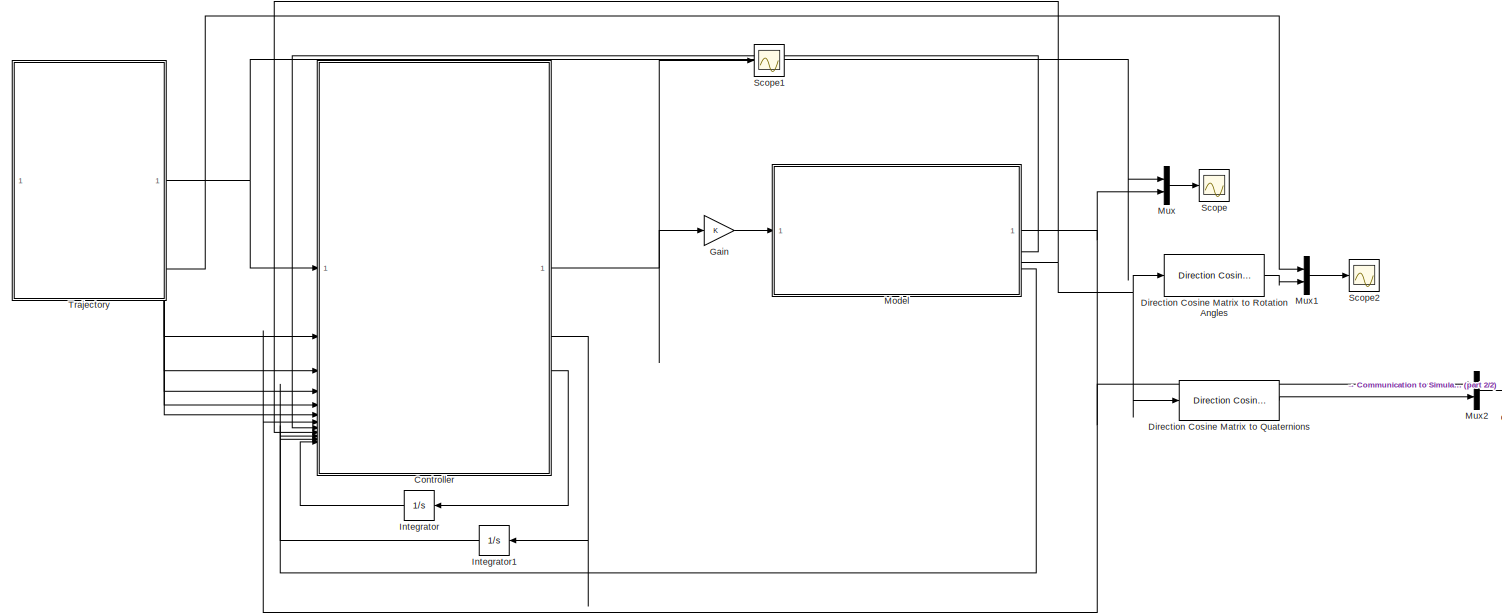
[diagram: root canvas - part 1/2, most of the canvas]
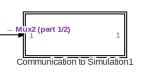
[diagram: root canvas - part 2/2, middle right region]
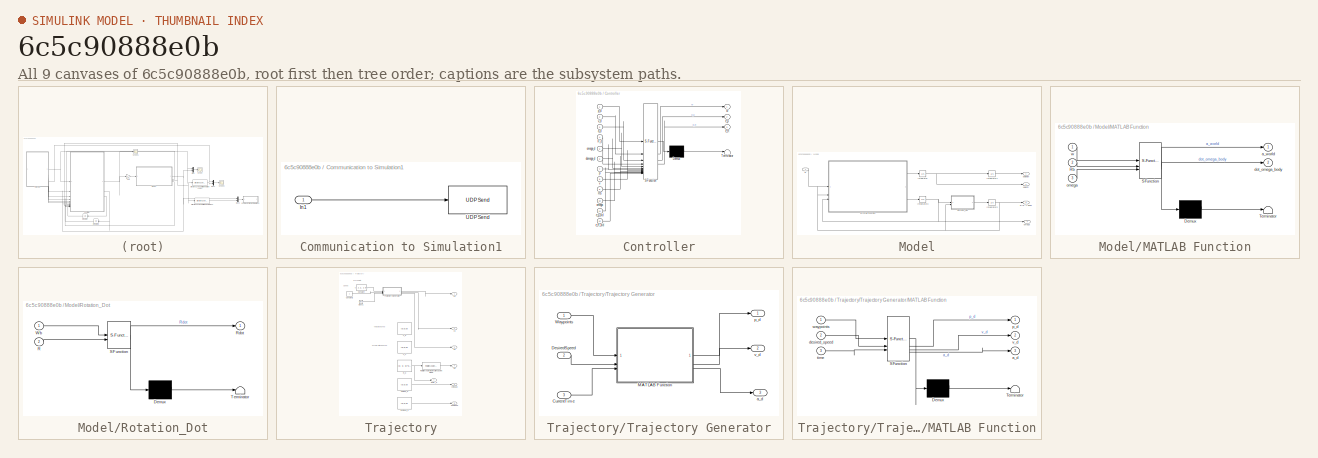
[diagram: thumbnail index - all 9 canvases of the model, root first then tree order]
MODEL slx_6c5c90888e0b
KIND model
CONFIG AbsTol = auto
CONFIG EnableMultiTasking = off
CONFIG FixedStep = basic_step_time
CONFIG MaxStep = auto
CONFIG MinStep = auto
CONFIG RelTol = 1e-3
CONFIG SampleTimeConstraint = Unconstrained
CONFIG SolverName = ode3
CONFIG StartTime = 0.0
CONFIG StopTime = 100000
BLOCK [SubSystem] Communication to Simulation1
  SystemSampleTime = 0.01
  TreatAsAtomicUnit = on
BLOCK [Inport] Communication to Simulation1/In1
BLOCK [Reference] Communication to Simulation1/UDP Send  REF=dspnetwork/UDP Send
  SourceBlock = dspnetwork/UDP Send
  SourceType = UDP Send
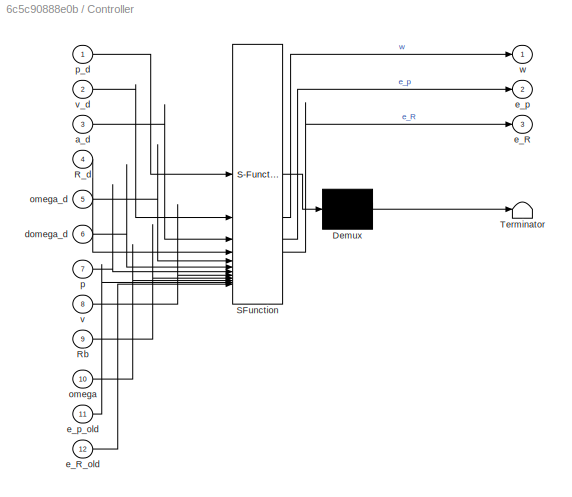
BLOCK [SubSystem] Controller
  ErrorFcn = Stateflow.Translate.translate
  PermitHierarchicalResolution = ExplicitOnly
  SFBlockType = MATLAB Function
  TreatAsAtomicUnit = on
BLOCK [Demux] Controller/ Demux 
  Outputs = 1
BLOCK [S-Function] Controller/ SFunction 
  EnableBusSupport = on
  FunctionName = sf_sfun
  Parameters = F,J,g,k_R,k_i_R,k_i_p,k_omega,k_p,k_v,m
  PortCounts = [12 4]
  SFcnIsStateOwnerBlock = off
  SFunctionDeploymentMode = off
  Tag = Stateflow S-Function 1
BLOCK [Terminator] Controller/ Terminator 
BLOCK [Inport] Controller/R_d
  Port = 4
BLOCK [Inport] Controller/Rb
  Port = 9
BLOCK [Inport] Controller/a_d
  Port = 3
BLOCK [Inport] Controller/domega_d
  Port = 6
BLOCK [Outport] Controller/e_R
  Port = 3
BLOCK [Inport] Controller/e_R_old
  Port = 12
BLOCK [Outport] Controller/e_p
  Port = 2
BLOCK [Inport] Controller/e_p_old
  Port = 11
BLOCK [Inport] Controller/omega
  Port = 10
BLOCK [Inport] Controller/omega_d
  Port = 5
BLOCK [Inport] Controller/p
  Port = 7
BLOCK [Inport] Controller/p_d
BLOCK [Inport] Controller/v
  Port = 8
BLOCK [Inport] Controller/v_d
  Port = 2
BLOCK [Outport] Controller/w
BLOCK [Reference] Direction Cosine Matrix to Quaternions  REF=sharedtransform/Direction Cosine Matrix 
to Quaternions
  SourceBlock = sharedtransform/Direction Cosine Matrix \nto Quaternions
  SourceType = DCM2Quaternion
BLOCK [Reference] Direction Cosine Matrix to Rotation Angles  REF=sharedtransform/Direction Cosine Matrix
to Rotation Angles
  AttributesFormatString = Rotation Order: %<rotationOrder>
  SourceBlock = sharedtransform/Direction Cosine Matrix\nto Rotation Angles
  SourceType = DCM2Ang
BLOCK [Gain] Gain
BLOCK [Integrator] Integrator
BLOCK [Integrator] Integrator1
BLOCK [SubSystem] Model
BLOCK [Integrator] Model/Integrator
  InitialCondition = v_init
BLOCK [Integrator] Model/Integrator1
  InitialCondition = p_init
BLOCK [Integrator] Model/Integrator2
  InitialCondition = R_init
BLOCK [Integrator] Model/Integrator3
  InitialCondition = omega_init
BLOCK [SubSystem] Model/MATLAB Function
  ErrorFcn = Stateflow.Translate.translate
  PermitHierarchicalResolution = ExplicitOnly
  SFBlockType = MATLAB Function
  TreatAsAtomicUnit = on
BLOCK [Demux] Model/MATLAB Function/ Demux 
  Outputs = 1
BLOCK [S-Function] Model/MATLAB Function/ SFunction 
  EnableBusSupport = on
  FunctionName = sf_sfun
  Parameters = F,J,g,m
  PortCounts = [3 3]
  SFcnIsStateOwnerBlock = off
  SFunctionDeploymentMode = off
  Tag = Stateflow S-Function 2
BLOCK [Terminator] Model/MATLAB Function/ Terminator 
BLOCK [Inport] Model/MATLAB Function/Rb
  Port = 2
BLOCK [Outport] Model/MATLAB Function/a_world
BLOCK [Outport] Model/MATLAB Function/dot_omega_body
  Port = 2
BLOCK [Inport] Model/MATLAB Function/omega
  Port = 3
BLOCK [Inport] Model/MATLAB Function/w
BLOCK [Outport] Model/R (b -> ENU)
  Port = 3
BLOCK [SubSystem] Model/Rotation_Dot
  ErrorFcn = Stateflow.Translate.translate
  PermitHierarchicalResolution = ExplicitOnly
  SFBlockType = MATLAB Function
  TreatAsAtomicUnit = on
BLOCK [Demux] Model/Rotation_Dot/ Demux 
  Outputs = 1
BLOCK [S-Function] Model/Rotation_Dot/ SFunction 
  EnableBusSupport = on
  FunctionName = sf_sfun
  PortCounts = [2 2]
  SFcnIsStateOwnerBlock = off
  SFunctionDeploymentMode = off
  Tag = Stateflow S-Function 5
BLOCK [Terminator] Model/Rotation_Dot/ Terminator 
BLOCK [Inport] Model/Rotation_Dot/R
  Port = 2
BLOCK [Outport] Model/Rotation_Dot/Rdot
BLOCK [Inport] Model/Rotation_Dot/Wb
BLOCK [Outport] Model/omega
  Port = 4
BLOCK [Outport] Model/poisition
BLOCK [Outport] Model/velocity
  Port = 2
BLOCK [Inport] Model/w
BLOCK [Mux] Mux
  Commented = on
  DisplayOption = bar
  Inputs = 2
BLOCK [Mux] Mux1
  DisplayOption = bar
  Inputs = 2
BLOCK [Mux] Mux2
  DisplayOption = bar
  Inputs = 2
BLOCK [Scope] Scope
  Commented = on
  Floating = off
  NumInputPorts = 1
  ScopeSpecificationString = Simulink.scopes.TimeScopeBlockCfg('CurrentConfiguration', extmgr.ConfigurationSet(extmgr.Configuration('Core','General UI',true),extmgr.Configuration('Core','Source UI',true),extmgr.Configuration('Sources','WiredSimulink',true),extmgr.Configuration('Visuals','Time Domain',true,'SerializedDisplays',{struct('MinYLimReal','-0.12509','MaxYLimReal','1.12501','YLabelReal','','MinYLimMag','0.00000','MaxY...<+1652ch>
BLOCK [Scope] Scope1
  Floating = off
  NumInputPorts = 1
  ScopeSpecificationString = Simulink.scopes.TimeScopeBlockCfg('CurrentConfiguration', extmgr.ConfigurationSet(extmgr.Configuration('Core','General UI',true),extmgr.Configuration('Core','Source UI',true),extmgr.Configuration('Sources','WiredSimulink',true,'DataLoggingVariableName','ScopeData1'),extmgr.Configuration('Visuals','Time Domain',true,'SerializedDisplays',{struct('MinYLimReal','-505.31949','MaxYLimReal','596.95133','...<+1759ch>
BLOCK [Scope] Scope2
  Floating = off
  NumInputPorts = 1
  ScopeSpecificationString = Simulink.scopes.TimeScopeBlockCfg('CurrentConfiguration', extmgr.ConfigurationSet(extmgr.Configuration('Core','General UI',true),extmgr.Configuration('Core','Source UI',true),extmgr.Configuration('Sources','WiredSimulink',true,'DataLoggingVariableName','ScopeData2'),extmgr.Configuration('Visuals','Time Domain',true,'SerializedDisplays',{struct('MinYLimReal','-0.00000000000022','MaxYLimReal','0.000...<+1769ch>
BLOCK [SubSystem] Trajectory
BLOCK [Clock] Trajectory/Clock1
BLOCK [Constant] Trajectory/Constant
  Value = [1 1 1; 1 0 -0.3; 1 0.5 -0.4; 1 0 -0.4; 1 0 1; 4 0 1; 4 0 -0.4; 4 1 -0.4; 1 1 1]
  VectorParams1D = off
BLOCK [Constant] Trajectory/Constant1
BLOCK [Outport] Trajectory/Euler_d
  Port = 7
BLOCK [Constant] Trajectory/R_d
  Value = [0; 0; 0]*pi/180
BLOCK [Outport] Trajectory/Rd
  Port = 4
BLOCK [Reference] Trajectory/Rotation Angles to Direction Cosine Matrix  REF=sharedtransform/Rotation Angles to
Direction Cosine Matrix
  AttributesFormatString = Rotation Order: %<rotationOrder>
  SourceBlock = sharedtransform/Rotation Angles to\nDirection Cosine Matrix
  SourceType = Ang2DCM
BLOCK [SubSystem] Trajectory/Trajectory Generator
BLOCK [Inport] Trajectory/Trajectory Generator/CurrentTime
  Port = 3
BLOCK [Inport] Trajectory/Trajectory Generator/DesiredSpeed
  Port = 2
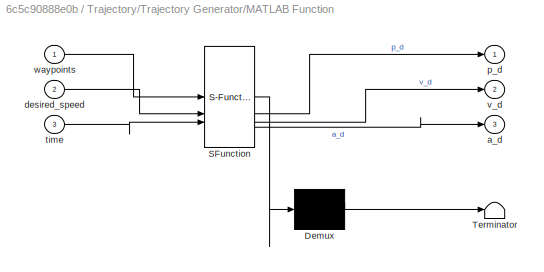
BLOCK [SubSystem] Trajectory/Trajectory Generator/MATLAB Function
  ErrorFcn = Stateflow.Translate.translate
  PermitHierarchicalResolution = ExplicitOnly
  SFBlockType = MATLAB Function
  TreatAsAtomicUnit = on
BLOCK [Demux] Trajectory/Trajectory Generator/MATLAB Function/ Demux 
  Outputs = 1
BLOCK [S-Function] Trajectory/Trajectory Generator/MATLAB Function/ SFunction 
  EnableBusSupport = on
  FunctionName = sf_sfun
  PortCounts = [3 4]
  SFcnIsStateOwnerBlock = off
  SFunctionDeploymentMode = off
  Tag = Stateflow S-Function 7
BLOCK [Terminator] Trajectory/Trajectory Generator/MATLAB Function/ Terminator 
BLOCK [Outport] Trajectory/Trajectory Generator/MATLAB Function/a_d
  Port = 3
BLOCK [Inport] Trajectory/Trajectory Generator/MATLAB Function/desired_speed
  Port = 2
BLOCK [Outport] Trajectory/Trajectory Generator/MATLAB Function/p_d
BLOCK [Inport] Trajectory/Trajectory Generator/MATLAB Function/time
  Port = 3
BLOCK [Outport] Trajectory/Trajectory Generator/MATLAB Function/v_d
  Port = 2
BLOCK [Inport] Trajectory/Trajectory Generator/MATLAB Function/waypoints
BLOCK [Inport] Trajectory/Trajectory Generator/Waypoints
BLOCK [Outport] Trajectory/Trajectory Generator/a_d
  Port = 3
BLOCK [Outport] Trajectory/Trajectory Generator/p_d
BLOCK [Outport] Trajectory/Trajectory Generator/v_d
  Port = 2
BLOCK [Constant] Trajectory/a_d
  Value = [0;0;0]
BLOCK [Outport] Trajectory/ad
  Port = 3
BLOCK [Constant] Trajectory/domega_d
  Value = [0;0;0]
BLOCK [Outport] Trajectory/domegad
  Port = 6
BLOCK [Constant] Trajectory/omega_d
  Value = [0;0;0]
BLOCK [Outport] Trajectory/omegad
  Port = 5
BLOCK [Outport] Trajectory/pd
BLOCK [Constant] Trajectory/v_d
  Value = [0;0;0]
BLOCK [Outport] Trajectory/vd
  Port = 2
ANNOTATION Trajectory: Speed
ANNOTATION Trajectory: Waypoints
ANNOTATION Trajectory: acceleration desired
ANNOTATION Trajectory: velocity desired
LINE Communication to Simulation1/In1:1 -> Communication to Simulation1/UDP Send:1
NET Controller:1 -> Gain:1, Scope1:1
LINE Controller:2 -> Integrator1:1
LINE Controller:3 -> Integrator:1
LINE Direction Cosine Matrix to Quaternions:1 -> Mux2:2
LINE Direction Cosine Matrix to Rotation Angles:1 -> Mux1:2
LINE Gain:1 -> Model:1
LINE Integrator1:1 -> Controller:11
LINE Integrator:1 -> Controller:12
LINE Model/Integrator1:1 -> Model/poisition:1
NET Model/Integrator2:1 -> Model/MATLAB Function:2, Model/R (b -> ENU):1, Model/Rotation_Dot:2
NET Model/Integrator3:1 -> Model/MATLAB Function:3, Model/Rotation_Dot:1, Model/omega:1
NET Model/Integrator:1 -> Model/Integrator1:1, Model/velocity:1
LINE Model/MATLAB Function:1 -> Model/Integrator:1
LINE Model/MATLAB Function:2 -> Model/Integrator3:1
LINE Model/Rotation_Dot:1 -> Model/Integrator2:1
LINE Model/w:1 -> Model/MATLAB Function:1
NET Model:1 -> Controller:7, Mux2:1, Mux:2
LINE Model:2 -> Controller:8
NET Model:3 -> Controller:9, Direction Cosine Matrix to Quaternions:1, Direction Cosine Matrix to Rotation Angles:1
LINE Model:4 -> Controller:10
LINE Mux1:1 -> Scope2:1
LINE Mux2:1 -> Communication to Simulation1:1
LINE Mux:1 -> Scope:1
LINE Trajectory/Clock1:1 -> Trajectory/Trajectory Generator:3
LINE Trajectory/Constant1:1 -> Trajectory/Trajectory Generator:2
LINE Trajectory/Constant:1 -> Trajectory/Trajectory Generator:1
NET Trajectory/R_d:1 -> Trajectory/Euler_d:1, Trajectory/Rotation Angles to Direction Cosine Matrix:1
LINE Trajectory/Rotation Angles to Direction Cosine Matrix:1 -> Trajectory/Rd:1
LINE Trajectory/Trajectory Generator/CurrentTime:1 -> Trajectory/Trajectory Generator/MATLAB Function:3
LINE Trajectory/Trajectory Generator/DesiredSpeed:1 -> Trajectory/Trajectory Generator/MATLAB Function:2
LINE Trajectory/Trajectory Generator/MATLAB Function:1 -> Trajectory/Trajectory Generator/p_d:1
LINE Trajectory/Trajectory Generator/MATLAB Function:2 -> Trajectory/Trajectory Generator/v_d:1
LINE Trajectory/Trajectory Generator/MATLAB Function:3 -> Trajectory/Trajectory Generator/a_d:1
LINE Trajectory/Trajectory Generator/Waypoints:1 -> Trajectory/Trajectory Generator/MATLAB Function:1
LINE Trajectory/Trajectory Generator:1 -> Trajectory/pd:1
LINE Trajectory/Trajectory Generator:2 -> Trajectory/vd:1
LINE Trajectory/Trajectory Generator:3 -> Trajectory/ad:1
LINE Trajectory/domega_d:1 -> Trajectory/domegad:1
LINE Trajectory/omega_d:1 -> Trajectory/omegad:1
NET Trajectory:1 -> Controller:1, Mux:1
LINE Trajectory:2 -> Controller:2
LINE Trajectory:3 -> Controller:3
LINE Trajectory:4 -> Controller:4
LINE Trajectory:5 -> Controller:5
LINE Trajectory:6 -> Controller:6
LINE Trajectory:7 -> Mux1:1
note: NET lines group one-source signal fan-out (src -> all destinations, sorted); 1:1 wires keep LINE
CHART Controller states=1 transitions=1
  STATE_LABEL 'eML_blk_kernel()'
  STATE_LABEL "SCRIPT:\nfunction [w, e_p, e_R] = fcn(p_d, v_d, a_d, R_d, omega_d, domega_d, p, v, Rb, omega, k_p, k_v, k_R, k_omega, m, J, F, g, e_p_old, e_R_old, k_i_p, k_i_R)\n    % k_v, k_p, k_i_p,  k_omega, k_R, k_i_R controller gains\n    % Rb = R\n    e_v = v - v_d;\n    e_p = p - p_d;\n\n    e_w = omega - Rb' * R_d * omega_d;\n    e_R = 0.5 * unskew(R_d' * Rb - Rb' * R_d);\n    \n\n    v_p = a_d - k_v * e_v - k_p * ...<+1086ch>"
CHART Model/MATLAB Function states=1 transitions=1
  STATE_LABEL 'eML_blk_kernel()'
  STATE_LABEL "SCRIPT:\nfunction [a_world,dot_omega_body] = fcn(w, Rb, F, m, J, g, omega)\n    % Rb = R\n    u = sign(w) .* w.^2;\n    a_world = [0 0 0]';\n    dot_omega_body = [0 0 0]';\n    \n    zero = zeros(3, 3);\n    mass = [1/m, 0, 0;\n            0, 1/m, 0;\n            0, 0, 1/m;];\n    \n    Jacobian = [mass, zero; zero, inv(J)] * [Rb, zero; zero, eye(3)] * F;\n    f = [0; 0; -g; inv(J) * cross(omega, J * omega)];\n...<+112ch>"
CHART Model/Rotation_Dot states=1 transitions=1
  STATE_LABEL 'eML_blk_kernel()'
  STATE_LABEL 'SCRIPT:\nfunction Rdot = Rototation_Dot(Wb,R)\n\np = Wb(1);\nq = Wb(2);\nr = Wb(3);\n\npersistent Ro;\n\nif isempty(Ro)\n    Ro=[1   0   0;\n        0   1   0;\n        0   0   1];\nelse\n    Ro= R;\nend\n\nRdot= skew(p,q,r)*Ro;\n\nfunction res=skew(p,q,r)\n\nres=[0 -r q;\n    r 0 -p;\n    -q p 0];\n\n'
CHART Trajectory/Trajectory Generator/MATLAB Function states=1 transitions=1
  STATE_LABEL 'eML_blk_kernel()'
  STATE_LABEL 'SCRIPT:\nfunction [p_d, v_d, a_d] = fcn(waypoints, desired_speed, time)\n    % Wrapper function that computes desired position, velocity, and acceleration\n    % for a given trajectory defined by waypoints and desired speed at a specific time.\n    [p_d, v_d, a_d] = trajectory_generator(waypoints, desired_speed, time);\nend\n\nfunction [p_d, v_d, a_d] = trajectory_generator(waypoints, desired_speed, time...<+3608ch>'
CHART  states=0 transitions=0
CHART  states=0 transitions=0
CHART  states=0 transitions=0
CHART  states=0 transitions=0
